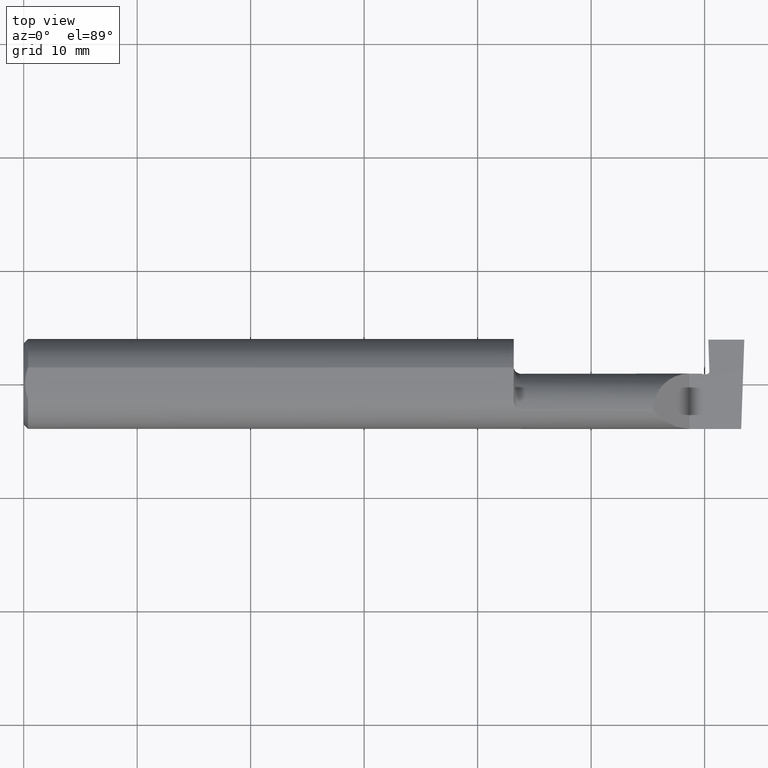
[diagram: clean part render]
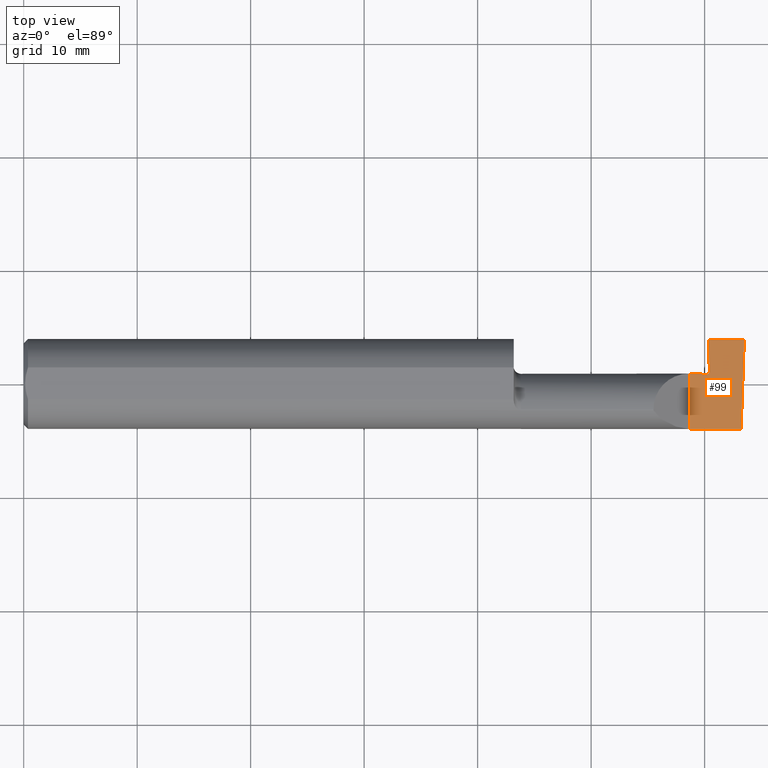
[diagram: same view with one face highlighted and labeled with its STEP entity id]
A machine part, top view. The second image highlights one B-rep face of the part: STEP entity #99.
In plain terms, the highlighted planar face has unit normal (-0, 0, -1).
Its self-contained STEP definition (entity closure, byte-faithful):
#1 = VECTOR ( 'NONE', #540, 39.37007874015748143 ) ;
#5 = CARTESIAN_POINT ( 'NONE',  ( 2.355000000003260041, 0.03390000000032496880, -4.667521605546841030E-11 ) ) ;
#12 = EDGE_CURVE ( 'NONE', #756, #678, #632, .T. ) ;
#16 = LINE ( 'NONE', #1021, #177 ) ;
#60 = CARTESIAN_POINT ( 'NONE',  ( 1.699999999999999956, 0.03590000000000001523, 9.797174393178832313E-17 ) ) ;
#64 = DIRECTION ( 'NONE',  ( 1.000000000000000000, 0.000000000000000000, 0.000000000000000000 ) ) ;
#73 = CARTESIAN_POINT ( 'NONE',  ( 2.489174561457560220, -0.1560999999999999888, 0.000000000000000000 ) ) ;
#99 = ADVANCED_FACE ( 'NONE', ( #131 ), #991, .F. ) ;
#105 =( BOUNDED_CURVE ( )  B_SPLINE_CURVE ( 3, ( #324, #511, #251, #1004 ),
 .UNSPECIFIED., .F., .T. ) 
 B_SPLINE_CURVE_WITH_KNOTS ( ( 4, 4 ),
 ( 8.673617379884035472E-19, 0.0004056548995604305151 ),
 .UNSPECIFIED. ) 
 CURVE ( )  GEOMETRIC_REPRESENTATION_ITEM ( )  RATIONAL_B_SPLINE_CURVE ( ( 1.000000000000000000, 0.7964389136393329460, 0.7964389136393329460, 1.000000000000000000 ) ) 
 REPRESENTATION_ITEM ( '' )  );
#129 = EDGE_CURVE ( 'NONE', #190, #616, #924, .T. ) ;
#131 = FACE_OUTER_BOUND ( 'NONE', #292, .T. ) ;
#134 = EDGE_CURVE ( 'NONE', #265, #1036, #105, .T. ) ;
#145 = AXIS2_PLACEMENT_3D ( 'NONE', #658, #1000, #574 ) ;
#165 = VECTOR ( 'NONE', #410, 39.37007874015748143 ) ;
#169 = EDGE_CURVE ( 'NONE', #734, #319, #847, .T. ) ;
#177 = VECTOR ( 'NONE', #520, 39.37007874015748143 ) ;
#190 = VERTEX_POINT ( 'NONE', #337 ) ;
#238 = VECTOR ( 'NONE', #746, 39.37007874015748143 ) ;
#244 = B_SPLINE_CURVE_WITH_KNOTS ( 'NONE', 1,
 ( #690, #280 ),
 .UNSPECIFIED., .F., .F.,
 ( 2, 2 ),
 ( 0.000000000000000000, 7.184204900802018397E-05 ),
 .UNSPECIFIED. ) ;
#251 = CARTESIAN_POINT ( 'NONE',  ( 2.374856490504267725, 0.03390000000001420349, 1.212278313675559921E-11 ) ) ;
#256 = EDGE_CURVE ( 'NONE', #1036, #406, #821, .T. ) ;
#265 = VERTEX_POINT ( 'NONE', #833 ) ;
#273 = CARTESIAN_POINT ( 'NONE',  ( 2.378829097470394949, 0.04424899496707573876, 1.288464875954872916E-11 ) ) ;
#280 = CARTESIAN_POINT ( 'NONE',  ( 2.353000000000368797, 0.03589999999963103261, 2.341593656821230351E-17 ) ) ;
#289 = CARTESIAN_POINT ( 'NONE',  ( 2.310000000000000053, -0.2000000000000000111, 2.326828918379970872E-17 ) ) ;
#292 = EDGE_LOOP ( 'NONE', ( #1070, #1041, #479, #443, #600, #864, #716, #301, #741 ) ) ;
#301 = ORIENTED_EDGE ( 'NONE', *, *, #12, .F. ) ;
#316 = CARTESIAN_POINT ( 'NONE',  ( 2.355000000003260041, 0.03390000000032496880, -4.667521605546841030E-11 ) ) ;
#319 = VERTEX_POINT ( 'NONE', #858 ) ;
#324 = CARTESIAN_POINT ( 'NONE',  ( 2.378829097470394949, 0.04424899496707573876, 1.288464875954872916E-11 ) ) ;
#332 = EDGE_CURVE ( 'NONE', #406, #678, #244, .T. ) ;
#337 = CARTESIAN_POINT ( 'NONE',  ( 2.374999999986525445, 0.1539000000000000090, -2.694222958124035986E-19 ) ) ;
#406 = VERTEX_POINT ( 'NONE', #5 ) ;
#410 = DIRECTION ( 'NONE',  ( -1.000000000000000000, -0.000000000000000000, -0.000000000000000000 ) ) ;
#422 = CARTESIAN_POINT ( 'NONE',  ( 2.300000000000000266, 0.1539000000000000090, -2.694222958124035986E-19 ) ) ;
#439 = CARTESIAN_POINT ( 'NONE',  ( 2.374999999986525445, 0.1539000000000000090, -2.694222958124035986E-19 ) ) ;
#443 = ORIENTED_EDGE ( 'NONE', *, *, #885, .T. ) ;
#453 = LINE ( 'NONE', #289, #1 ) ;
#479 = ORIENTED_EDGE ( 'NONE', *, *, #129, .F. ) ;
#503 = B_SPLINE_CURVE_WITH_KNOTS ( 'NONE', 1,
 ( #439, #273 ),
 .UNSPECIFIED., .F., .F.,
 ( 2, 2 ),
 ( 6.838014194838782952E-15, 0.002786833191336700669 ),
 .UNSPECIFIED. ) ;
#511 = CARTESIAN_POINT ( 'NONE',  ( 2.379039237855848476, 0.03823136167752757414, 1.247515123761134113E-11 ) ) ;
#520 = DIRECTION ( 'NONE',  ( -0.03489949670249362784, -0.9993908270190959842, 0.000000000000000000 ) ) ;
#540 = DIRECTION ( 'NONE',  ( -0.000000000000000000, 1.000000000000000000, -0.000000000000000000 ) ) ;
#573 = VECTOR ( 'NONE', #64, 39.37007874015748143 ) ;
#574 = DIRECTION ( 'NONE',  ( -1.000000000000000000, 0.000000000000000000, 1.224646799147353700E-16 ) ) ;
#600 = ORIENTED_EDGE ( 'NONE', *, *, #134, .T. ) ;
#616 = VERTEX_POINT ( 'NONE', #838 ) ;
#632 = LINE ( 'NONE', #60, #573 ) ;
#645 = CARTESIAN_POINT ( 'NONE',  ( 2.368835189204281821, 0.03390000000002178077, -4.551625620684935152E-11 ) ) ;
#658 = CARTESIAN_POINT ( 'NONE',  ( 2.500000000000000000, -0.2000000000000000111, 0.000000000000000000 ) ) ;
#678 = VERTEX_POINT ( 'NONE', #996 ) ;
#690 = CARTESIAN_POINT ( 'NONE',  ( 2.355000000003260041, 0.03390000000032496880, -4.667521605546841030E-11 ) ) ;
#716 = ORIENTED_EDGE ( 'NONE', *, *, #332, .T. ) ;
#734 = VERTEX_POINT ( 'NONE', #73 ) ;
#741 = ORIENTED_EDGE ( 'NONE', *, *, #1009, .F. ) ;
#746 = DIRECTION ( 'NONE',  ( 1.000000000000000000, -0.000000000000000000, -0.000000000000000000 ) ) ;
#756 = VERTEX_POINT ( 'NONE', #1077 ) ;
#821 = B_SPLINE_CURVE_WITH_KNOTS ( 'NONE', 1,
 ( #645, #316 ),
 .UNSPECIFIED., .F., .F.,
 ( 2, 2 ),
 ( 0.000000000000000000, 0.0003514138057059690290 ),
 .UNSPECIFIED. ) ;
#833 = CARTESIAN_POINT ( 'NONE',  ( 2.378829097470394949, 0.04424899496707573876, 1.288464875954872916E-11 ) ) ;
#838 = CARTESIAN_POINT ( 'NONE',  ( 2.500000000000000000, 0.1539000000000000090, 0.000000000000000000 ) ) ;
#847 = LINE ( 'NONE', #931, #165 ) ;
#858 = CARTESIAN_POINT ( 'NONE',  ( 2.310000000000000053, -0.1560999999999999888, 2.326828918379970872E-17 ) ) ;
#864 = ORIENTED_EDGE ( 'NONE', *, *, #256, .T. ) ;
#885 = EDGE_CURVE ( 'NONE', #190, #265, #503, .T. ) ;
#908 = EDGE_CURVE ( 'NONE', #616, #734, #16, .T. ) ;
#924 = LINE ( 'NONE', #422, #238 ) ;
#931 = CARTESIAN_POINT ( 'NONE',  ( 3.749399456654646757E-32, -0.1560999999999999888, 3.061616997868384127E-16 ) ) ;
#991 = PLANE ( 'NONE',  #145 ) ;
#996 = CARTESIAN_POINT ( 'NONE',  ( 2.353000000000368797, 0.03589999999963103261, 2.341593656821230351E-17 ) ) ;
#1000 = DIRECTION ( 'NONE',  ( -1.224646799147353700E-16, 0.000000000000000000, -1.000000000000000000 ) ) ;
#1004 = CARTESIAN_POINT ( 'NONE',  ( 2.368835189204281821, 0.03390000000002178077, -4.551625620684935152E-11 ) ) ;
#1009 = EDGE_CURVE ( 'NONE', #319, #756, #453, .T. ) ;
#1021 = CARTESIAN_POINT ( 'NONE',  ( 2.500000000000000000, 0.1539000000000000090, 0.000000000000000000 ) ) ;
#1036 = VERTEX_POINT ( 'NONE', #1063 ) ;
#1041 = ORIENTED_EDGE ( 'NONE', *, *, #908, .F. ) ;
#1063 = CARTESIAN_POINT ( 'NONE',  ( 2.368835189204281821, 0.03390000000002178077, -4.551625620684935152E-11 ) ) ;
#1070 = ORIENTED_EDGE ( 'NONE', *, *, #169, .F. ) ;
#1077 = CARTESIAN_POINT ( 'NONE',  ( 2.310000000000000053, 0.03589999999999998748, 2.326828918379970872E-17 ) ) ;